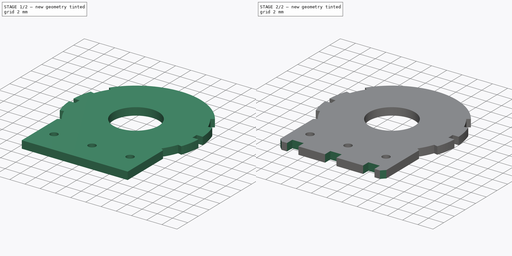
[diagram: build sequence overview — one tinted view per stage of 2, left to right]
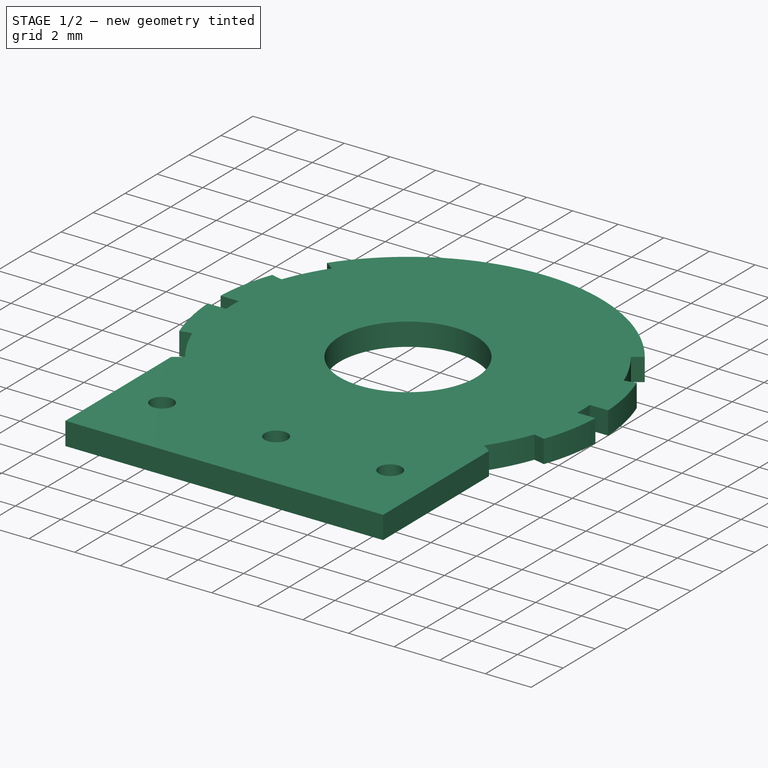
[diagram: stage 1 of 2 — iso view after this stage's code; geometry added in this stage tinted green]
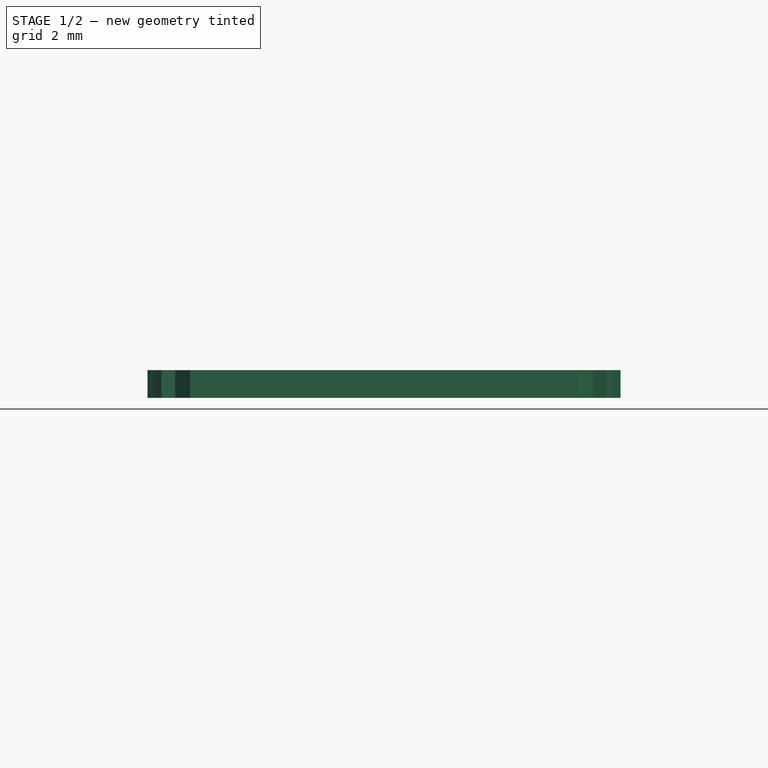
[diagram: stage 1 of 2 — front view after this stage's code; geometry added in this stage tinted green]
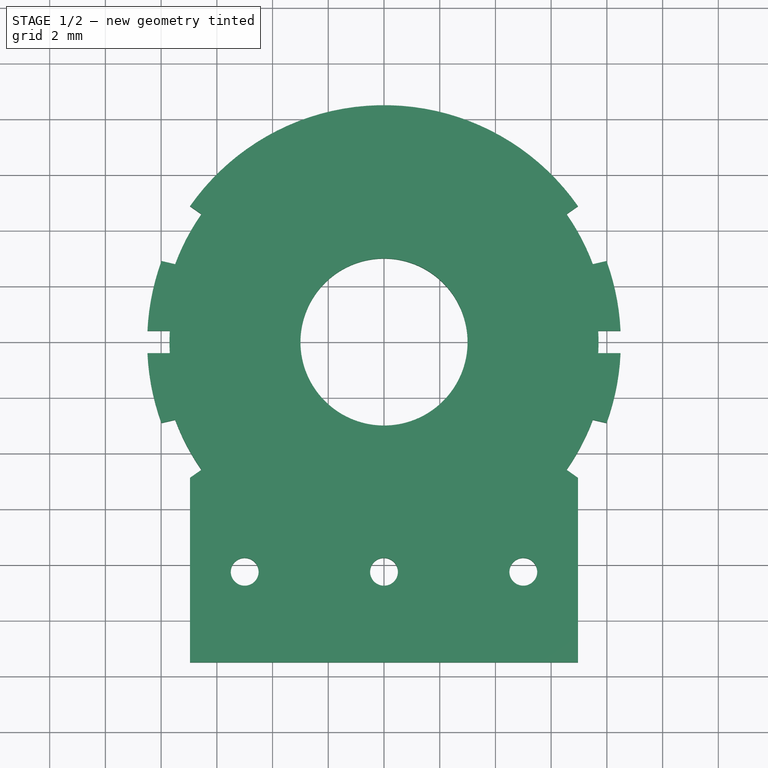
[diagram: stage 1 of 2 — top view after this stage's code; geometry added in this stage tinted green]
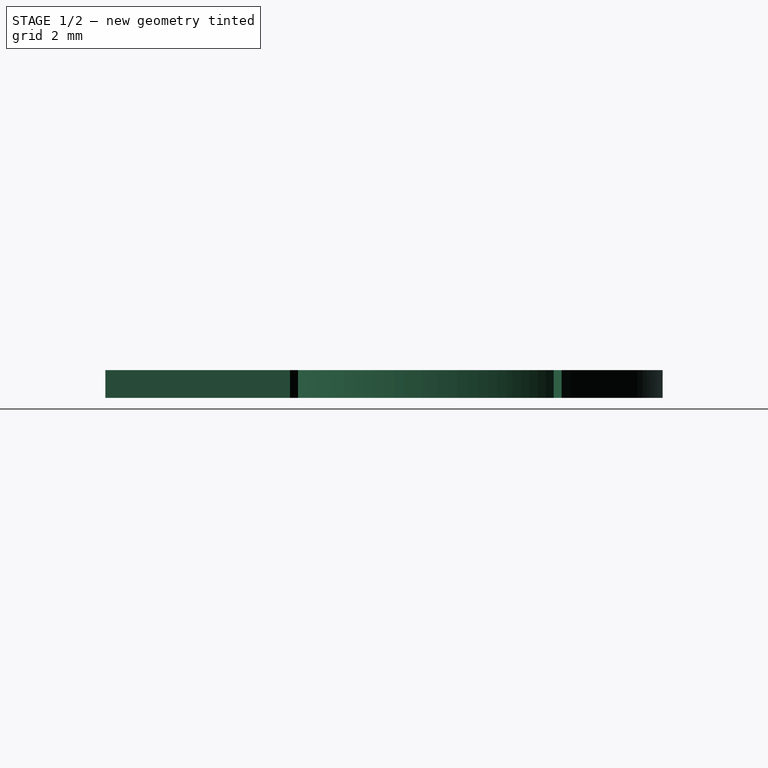
[diagram: stage 1 of 2 — right view after this stage's code; geometry added in this stage tinted green]
FCSTD DOCUMENT  (FreeCAD 0.19R16699 (Git))
Label: RV16_Wafer
License: All rights reserved
LicenseURL: http://en.wikipedia.org/wiki/All_rights_reserved
objects: Sketcher::SketchObject×3, PartDesign::Pocket×2, PartDesign::ShapeBinder×1, PartDesign::Pad×1, PartDesign::Chamfer×1, PartDesign::Body×1, App::Part×1
note: 12 computed .brp shape members not serialized (recipe doc carries the construction recipe); baked Part::Feature solids carry a one-line shape summary decoded from their .brp

FEATURE [PartDesign::ShapeBinder] ShapeBinder
  TraceSupport = false
FEATURE [Sketcher::SketchObject] Sketch006  label="WaferSketch"
  ExternalGeometry = -> [ShapeBinder]
  MapMode = 5
  Placement = pos=(0,0,0) rot=(1,0,0;3.14159rad)
  Support = -> [ShapeBinder]
  sketch-geometry (30):
    g0: ArcOfCircle CenterX=0 CenterY=0 CenterZ=0 NormalX=0 NormalY=0 NormalZ=1 AngleXU=0 Radius=8.5 StartAngle=2.79253 EndAngle=3.09452
    g1: Circle [constr] CenterX=0 CenterY=0 CenterZ=0 NormalX=0 NormalY=0 NormalZ=1 AngleXU=0 Radius=8
    g2: ArcOfCircle CenterX=0 CenterY=0 CenterZ=0 NormalX=0 NormalY=0 NormalZ=1 AngleXU=0 Radius=8.5 StartAngle=3.18867 EndAngle=3.49066
    g3: LineSegment StartX=-7.98739 StartY=2.90717 StartZ=0 EndX=-7.49667 EndY=2.79283 EndZ=0
    g4: LineSegment StartX=-7.98739 StartY=-2.90717 StartZ=0 EndX=-7.49667 EndY=-2.79283 EndZ=0
    g5: LineSegment StartX=7.98739 StartY=2.90717 StartZ=0 EndX=7.49667 EndY=2.79283 EndZ=0
    g6: LineSegment StartX=7.98739 StartY=-2.90717 StartZ=0 EndX=7.49667 EndY=-2.79283 EndZ=0
    g7: ArcOfCircle CenterX=0 CenterY=0 CenterZ=0 NormalX=0 NormalY=0 NormalZ=1 AngleXU=0 Radius=8.5 StartAngle=0.0470762 EndAngle=0.349066
    g8: ArcOfCircle CenterX=0 CenterY=0 CenterZ=0 NormalX=0 NormalY=0 NormalZ=1 AngleXU=0 Radius=8.5 StartAngle=5.93412 EndAngle=6.23611
    g9: Circle [constr] CenterX=0 CenterY=0 CenterZ=0 NormalX=0 NormalY=0 NormalZ=1 AngleXU=0 Radius=8.5
    g10: LineSegment StartX=-6.96279 StartY=4.8754 StartZ=0 EndX=-6.55322 EndY=4.58861 EndZ=0
    g11: LineSegment StartX=6.96279 StartY=4.8754 StartZ=0 EndX=6.55322 EndY=4.58861 EndZ=0
    g12: LineSegment StartX=6.96279 StartY=-4.8754 StartZ=0 EndX=6.55322 EndY=-4.58861 EndZ=0
    g13: LineSegment StartX=-6.96279 StartY=-4.8754 StartZ=0 EndX=-6.55322 EndY=-4.58861 EndZ=0
    g14: ArcOfCircle CenterX=0 CenterY=0 CenterZ=0 NormalX=0 NormalY=0 NormalZ=1 AngleXU=0 Radius=8 StartAngle=2.53073 EndAngle=2.78498
    g15: ArcOfCircle CenterX=0 CenterY=0 CenterZ=0 NormalX=0 NormalY=0 NormalZ=1 AngleXU=0 Radius=8 StartAngle=0.356615 EndAngle=0.610865
    g16: ArcOfCircle CenterX=0 CenterY=0 CenterZ=0 NormalX=0 NormalY=0 NormalZ=1 AngleXU=0 Radius=8 StartAngle=5.67232 EndAngle=5.92657
    g17: ArcOfCircle CenterX=0 CenterY=0 CenterZ=0 NormalX=0 NormalY=0 NormalZ=1 AngleXU=0 Radius=8 StartAngle=3.49821 EndAngle=3.75246
    g18: Circle CenterX=0 CenterY=0 CenterZ=0 NormalX=0 NormalY=0 NormalZ=1 AngleXU=0 Radius=3
    g19: ArcOfCircle CenterX=0 CenterY=0 CenterZ=0 NormalX=0 NormalY=0 NormalZ=1 AngleXU=0 Radius=8.5 StartAngle=3.75246 EndAngle=5.67232
    g20: LineSegment StartX=-6.96279 StartY=4.8754 StartZ=0 EndX=-6.96279 EndY=11.5 EndZ=0
    g21: LineSegment StartX=6.96279 StartY=4.8754 StartZ=0 EndX=6.96279 EndY=11.5 EndZ=0
    g22: LineSegment StartX=6.96279 StartY=11.5 StartZ=0 EndX=-6.96279 EndY=11.5 EndZ=0
    g23: ArcOfCircle CenterX=0 CenterY=0 CenterZ=0 NormalX=0 NormalY=0 NormalZ=1 AngleXU=0 Radius=7.7 StartAngle=3.08962 EndAngle=3.19356
    g24: LineSegment StartX=-7.6896 StartY=0.4 StartZ=0 EndX=-8.49058 EndY=0.4 EndZ=0
    g25: LineSegment StartX=-7.6896 StartY=-0.4 StartZ=0 EndX=-8.49058 EndY=-0.4 EndZ=0
    g26: ArcOfCircle CenterX=0 CenterY=0 CenterZ=0 NormalX=0 NormalY=0 NormalZ=1 AngleXU=0 Radius=7.7 StartAngle=6.23121 EndAngle=6.33516
    g27: LineSegment StartX=8.49058 StartY=0.4 StartZ=0 EndX=7.6896 EndY=0.4 EndZ=0
    g28: LineSegment StartX=8.49058 StartY=-0.4 StartZ=0 EndX=7.6896 EndY=-0.4 EndZ=0
    g29: GeomPoint X=0 Y=-8.5 Z=0
  constraints (77):
    c: Coincident(g0,g-1)
    c: Coincident(g0,g-4)
    c: Coincident(g1,g0)
    c: PointOnObject(g-4,g1)
    c: Coincident(g2,g0)
    c: Coincident(g2,g-5)
    c: Coincident(g3,g0)
    c: Coincident(g3,g-4)
    c: Coincident(g4,g2)
    c: Coincident(g4,g-5)
    c: Coincident(g5,g-7)
    c: Coincident(g5,g-7)
    c: Coincident(g6,g-8)
    c: Coincident(g6,g-8)
    c: Coincident(g7,g0)
    c: Coincident(g7,g5)
    c: Coincident(g8,g0)
    c: Coincident(g8,g6)
    c: Coincident(g9,g0)
    c: PointOnObject(g0,g9)
    c: PointOnObject(g10,g9)
    c: Symmetric(g11,g10,g-2)
    c: Perpendicular(g1,g10)
    c: Perpendicular(g1,g11)
    c: PointOnObject(g13,g9)
    c: Perpendicular(g1,g13)
    c: Perpendicular(g1,g12)
    c: Symmetric(g12,g13,g-2)
    c: Coincident(g14,g0)
    c: Coincident(g14,g3)
    c: Coincident(g14,g10)
    c: Coincident(g15,g0)
    c: Coincident(g15,g11)
    c: Coincident(g15,g5)
    c: Coincident(g16,g0)
    c: Coincident(g16,g6)
    c: Coincident(g16,g12)
    c: Coincident(g17,g0)
    c: Coincident(g17,g13)
    c: Coincident(g17,g4)
    c: Coincident(g18,g0)
    c: Radius(g18) = 3
    c: Coincident(g19,g0)
    c: Coincident(g19,g13)
    c: Coincident(g19,g12)
    c: Coincident(g20,g10)
    c: Vertical(g20)
    c: Coincident(g21,g11)
    c: Vertical(g21)
    c: Coincident(g22,g21)
    c: Coincident(g22,g20)
    c: Horizontal(g22)
    c: Coincident(g23,g0)
    c: Distance(g0,g23) = 7.7
    c: Symmetric(g23,g23,g-1)
    c: Coincident(g24,g23)
    c: Coincident(g24,g0)
    c: Coincident(g25,g23)
    c: Tangent(g24,g-3)
    c: Tangent(g25,g-6)
    c: Coincident(g2,g25)
    c: Coincident(g26,g0)
    c: Distance(g26,g0) = 7.7
    c: Coincident(g27,g7)
    c: Coincident(g27,g26)
    c: Coincident(g28,g8)
    c: Coincident(g28,g26)
    c: Tangent(g27,g-9)
    c: Tangent(g28,g-9)
    c: Horizontal(g24)
    c: Horizontal(g27)
    c: Horizontal(g28)
    c: Angle(g-1,g11) = 0.610865
    c: Angle(g12,g-1) = 0.610865
    c: PointOnObject(g29,g19)
    c: PointOnObject(g29,g-2)
    c: DistanceY(g29,g20) = 20
FEATURE [PartDesign::Pad] Pad005  label="Wafer"
  Length = 1
  Length2 = 100
  Profile = -> Sketch006
  Type = 0
FEATURE [Sketcher::SketchObject] Sketch012  label="TerminalHoleSketch"
  MapMode = 5
  Support = -> [Pad005]
  sketch-geometry (3):
    g0: Circle CenterX=0 CenterY=-8.25 CenterZ=0 NormalX=0 NormalY=0 NormalZ=1 AngleXU=0 Radius=0.5
    g1: Circle CenterX=-5 CenterY=-8.25 CenterZ=0 NormalX=0 NormalY=0 NormalZ=1 AngleXU=0 Radius=0.5
    g2: Circle CenterX=5 CenterY=-8.25 CenterZ=0 NormalX=0 NormalY=0 NormalZ=1 AngleXU=0 Radius=0.5
  constraints (9):
    c: Radius(g0) = 0.5
    c: DistanceY(g0,g-1) = 8.25
    c: PointOnObject(g0,g-2)
    c: Horizontal(g2,g0)
    c: Horizontal(g0,g1)
    c: Radius(g1) = 0.5
    c: Radius(g2) = 0.5
    c: DistanceX(g1,g0) = 5
    c: DistanceX(g0,g2) = 5
FEATURE [PartDesign::Pocket] Pocket002  label="TerminalHolePocket"
  BaseFeature = -> Pad005
  Length = 2
  Length2 = 100
  Profile = -> Sketch012
  Type = 0
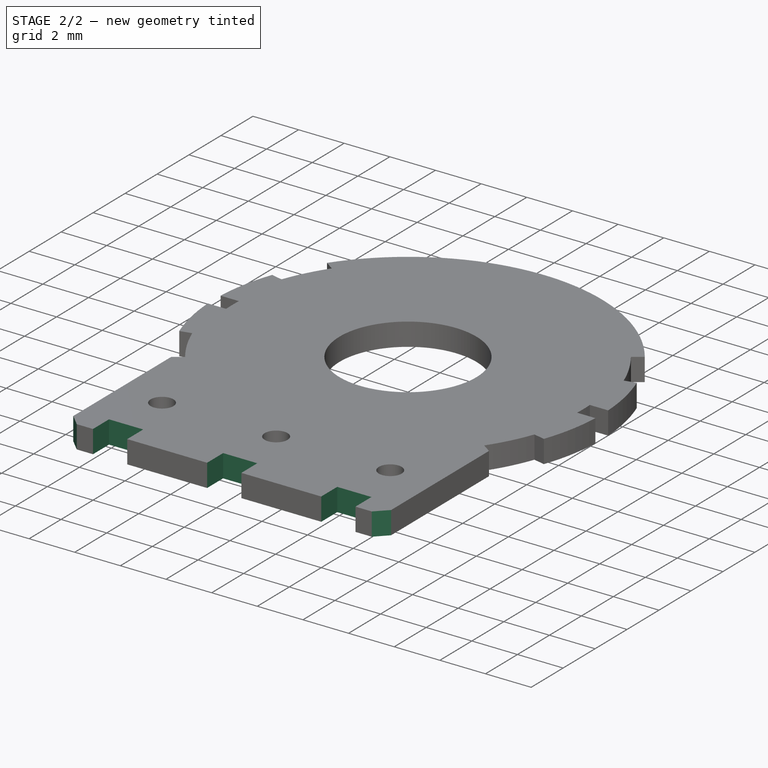
[diagram: stage 2 of 2 — iso view after this stage's code; geometry added in this stage tinted green]
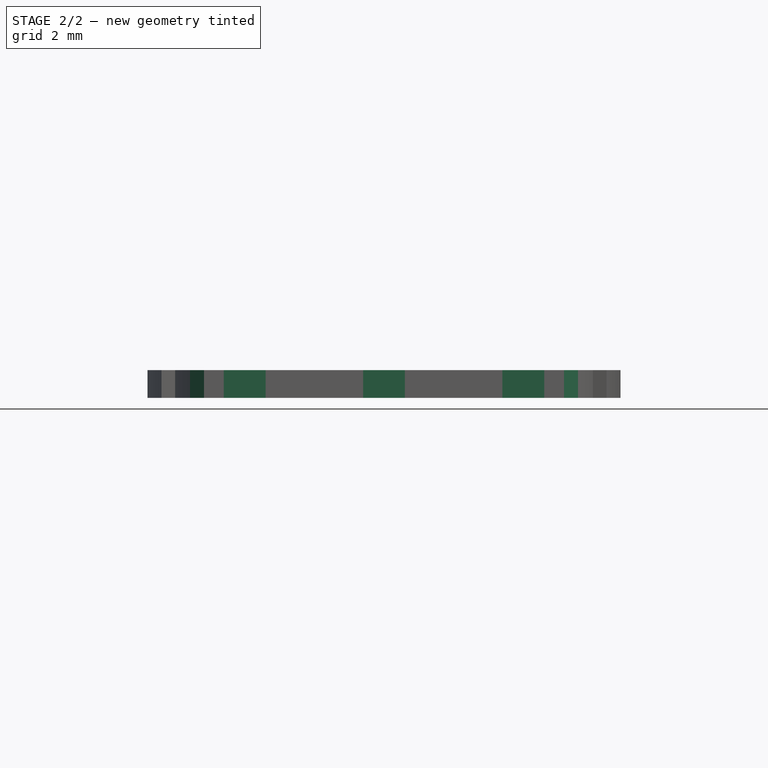
[diagram: stage 2 of 2 — front view after this stage's code; geometry added in this stage tinted green]
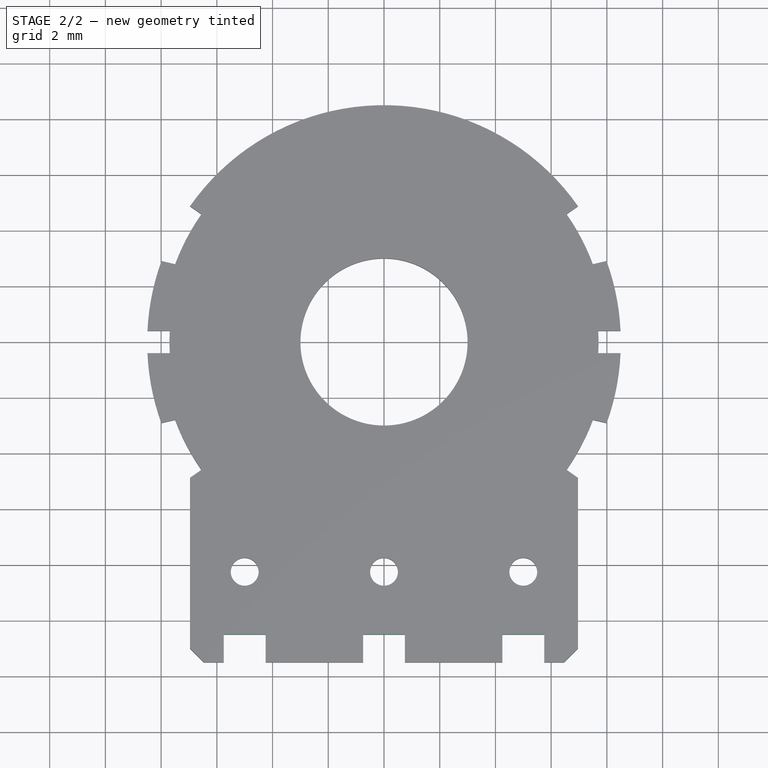
[diagram: stage 2 of 2 — top view after this stage's code; geometry added in this stage tinted green]
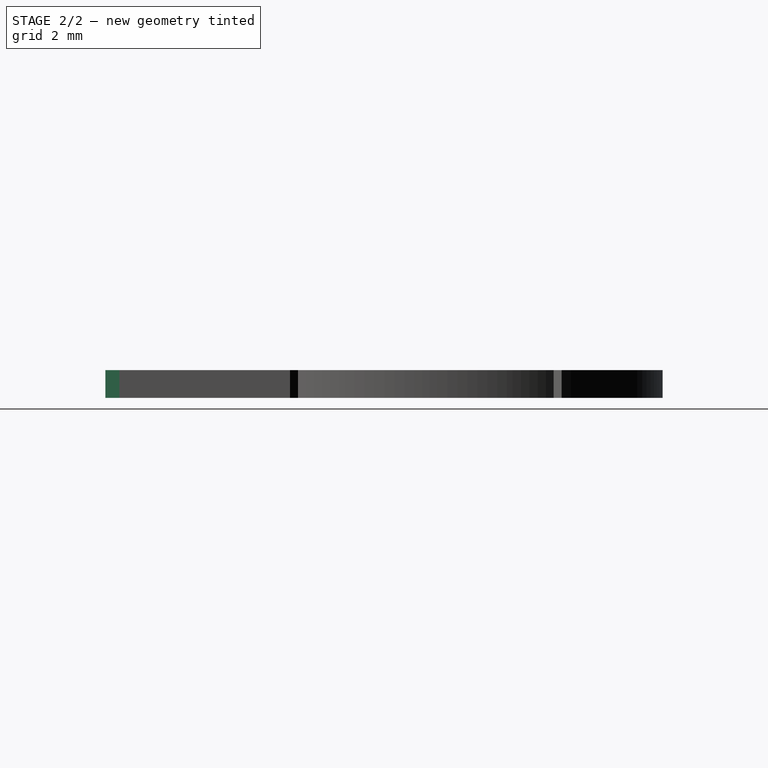
[diagram: stage 2 of 2 — right view after this stage's code; geometry added in this stage tinted green]
FEATURE [Sketcher::SketchObject] Sketch013  label="TerminalCutoutSketch"
  ExternalGeometry = -> [Pocket002]
  MapMode = 5
  Support = -> [Pocket002]
  sketch-geometry (16):
    g0: LineSegment StartX=-6.96279 StartY=-11.5 StartZ=0 EndX=-5.75 EndY=-11.5 EndZ=0
    g1: LineSegment StartX=-5.75 StartY=-11.5 StartZ=0 EndX=-5.75 EndY=-10.5 EndZ=0
    g2: LineSegment StartX=-5.75 StartY=-10.5 StartZ=0 EndX=-4.25 EndY=-10.5 EndZ=0
    g3: LineSegment StartX=-4.25 StartY=-10.5 StartZ=0 EndX=-4.25 EndY=-11.5 EndZ=0
    g4: LineSegment StartX=-4.25 StartY=-11.5 StartZ=0 EndX=-0.75 EndY=-11.5 EndZ=0
    g5: LineSegment StartX=-0.75 StartY=-11.5 StartZ=0 EndX=-0.75 EndY=-10.5 EndZ=0
    g6: LineSegment StartX=-0.75 StartY=-10.5 StartZ=0 EndX=0.75 EndY=-10.5 EndZ=0
    g7: LineSegment StartX=0.75 StartY=-10.5 StartZ=0 EndX=0.75 EndY=-11.5 EndZ=0
    g8: LineSegment StartX=0.75 StartY=-11.5 StartZ=0 EndX=4.25 EndY=-11.5 EndZ=0
    g9: LineSegment StartX=4.25 StartY=-11.5 StartZ=0 EndX=4.25 EndY=-10.5 EndZ=0
    g10: LineSegment StartX=4.25 StartY=-10.5 StartZ=0 EndX=5.75 EndY=-10.5 EndZ=0
    g11: LineSegment StartX=5.75 StartY=-10.5 StartZ=0 EndX=5.75 EndY=-11.5 EndZ=0
    g12: LineSegment StartX=5.75 StartY=-11.5 StartZ=0 EndX=6.96279 EndY=-11.5 EndZ=0
    g13: LineSegment StartX=6.96279 StartY=-11.5 StartZ=0 EndX=6.96279 EndY=-12.8713 EndZ=0
    g14: LineSegment StartX=6.96279 StartY=-12.8713 StartZ=0 EndX=-6.96279 EndY=-12.8713 EndZ=0
    g15: LineSegment StartX=-6.96279 StartY=-12.8713 StartZ=0 EndX=-6.96279 EndY=-11.5 EndZ=0
  constraints (44):
    c: Coincident(g-5,g0)
    c: PointOnObject(g0,g-5)
    c: Coincident(g0,g1)
    c: Vertical(g1)
    c: Coincident(g1,g2)
    c: Horizontal(g2)
    c: Coincident(g2,g3)
    c: Vertical(g3)
    c: Coincident(g3,g4)
    c: PointOnObject(g4,g-5)
    c: Coincident(g4,g5)
    c: Vertical(g5)
    c: Coincident(g5,g6)
    c: Coincident(g6,g7)
    c: Vertical(g7)
    c: Coincident(g7,g8)
    c: PointOnObject(g8,g-5)
    c: Coincident(g8,g9)
    c: Vertical(g9)
    c: Coincident(g9,g10)
    c: Horizontal(g10)
    c: Coincident(g10,g11)
    c: Vertical(g11)
    c: Coincident(g11,g12)
    c: Coincident(g12,g-5)
    c: Coincident(g12,g13)
    c: Vertical(g13)
    c: Coincident(g13,g14)
    c: Horizontal(g14)
    c: Coincident(g14,g15)
    c: Coincident(g15,g0)
    c: Vertical(g15)
    c: Equal(g2,g6)
    c: Equal(g6,g10)
    c: DistanceX(g6,g6) = 1.5
    c: Equal(g3,g1)
    c: Equal(g1,g5)
    c: Equal(g5,g7)
    c: Equal(g7,g9)
    c: Equal(g9,g11)
    c: DistanceY(g7,g7) = 1
    c: Symmetric(g6,g5,g-2)
    c: DistanceX(g-1,g8) = 4.25
    c: DistanceX(g3,g-1) = 4.25
FEATURE [PartDesign::Pocket] Pocket003  label="TerminalCutoutPocket"
  BaseFeature = -> Pocket002
  Length = 5
  Length2 = 100
  Profile = -> Sketch013
  Type = 0
FEATURE [PartDesign::Chamfer] Chamfer
  Base = -> Pocket003 [Edge5,Edge102]
  BaseFeature = -> Pocket003
  Size = 0.5
FEATURE [PartDesign::Body] Body001  label="RV16_Wafer_"
  Group = -> [ShapeBinder,Sketch006,Pad005,Sketch012,Pocket002,Sketch013,Pocket003,Chamfer]
  Origin = -> Origin001
  Tip = -> Chamfer
FEATURE [App::Part] Part  label="RV16_Wafer"
  Group = -> [Body001]
  Origin = -> Origin003
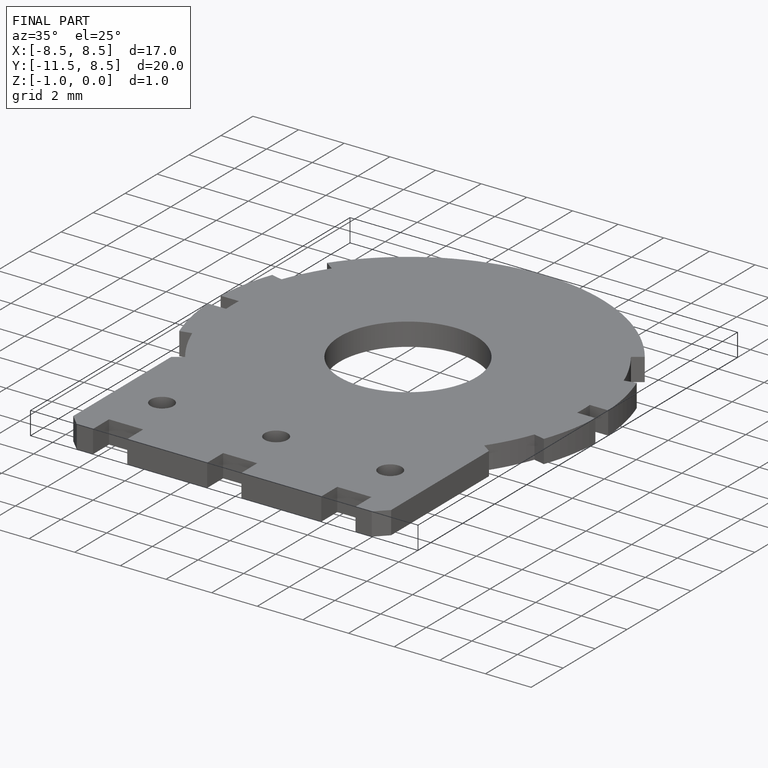
[diagram: finished part — iso view with bounding-box wireframe]
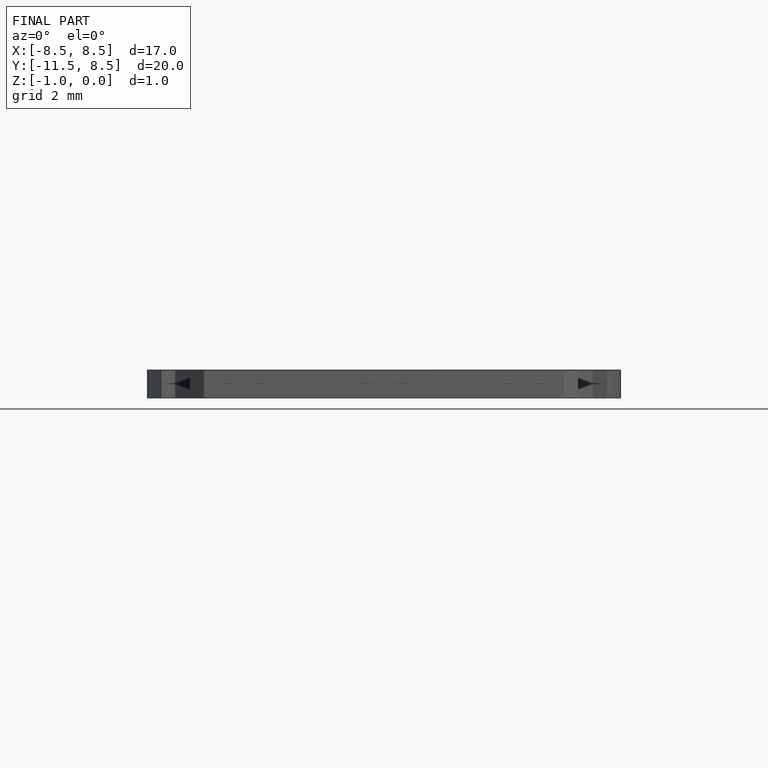
[diagram: finished part — front view with bounding-box wireframe]
